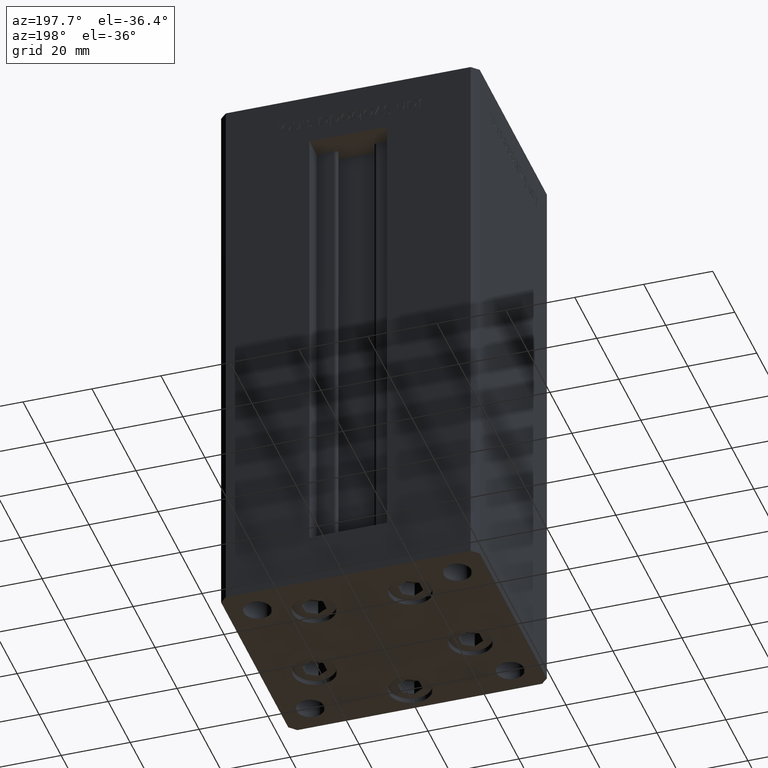
[diagram: clean part render]
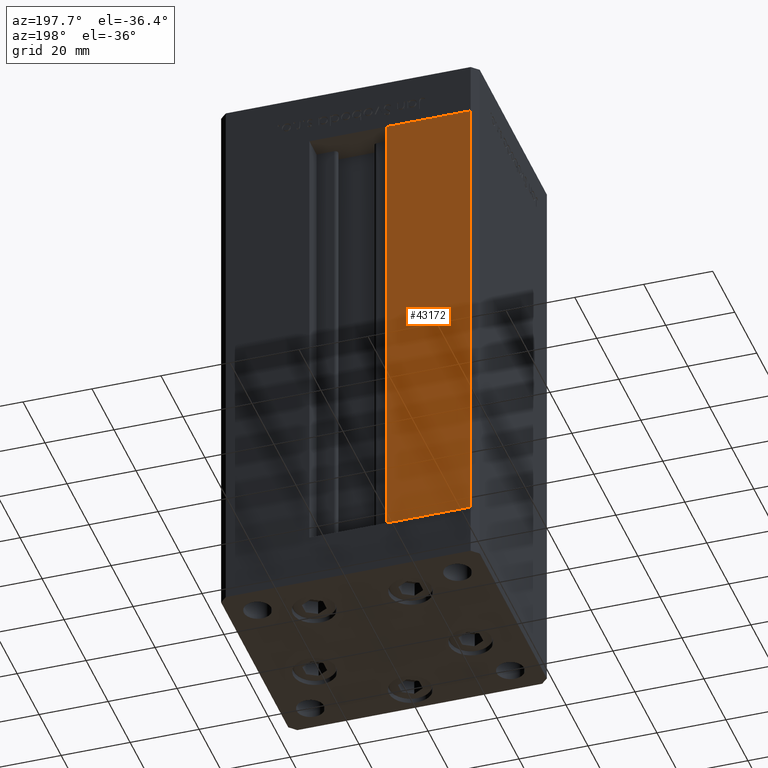
[diagram: same view with one face highlighted and labeled with its STEP entity id]
A machine part, auxiliary view. The second image highlights one B-rep face of the part: STEP entity #43172.
In plain terms, the highlighted planar face has unit normal (0, -1, 0).
Its self-contained STEP definition (entity closure, byte-faithful):
#1097 = CARTESIAN_POINT ( 'NONE',  ( -35.50000000000000000, 32.49999999999999289, 0.000000000000000000 ) ) ;
#5168 = LINE ( 'NONE', #16354, #43896 ) ;
#6299 = CARTESIAN_POINT ( 'NONE',  ( -11.25000000000000178, 32.49999999999999289, 0.000000000000000000 ) ) ;
#6670 = VERTEX_POINT ( 'NONE', #35328 ) ;
#7966 = VECTOR ( 'NONE', #26106, 1000.000000000000000 ) ;
#9147 = DIRECTION ( 'NONE',  ( 1.000000000000000000, 0.000000000000000000, 0.000000000000000000 ) ) ;
#10268 = CARTESIAN_POINT ( 'NONE',  ( -11.25000000000000178, 32.49999999999999289, 0.000000000000000000 ) ) ;
#12166 = CARTESIAN_POINT ( 'NONE',  ( -35.50000000000000000, 32.49999999999999289, 136.0000000000000000 ) ) ;
#16354 = CARTESIAN_POINT ( 'NONE',  ( -11.25000000000000178, 32.49999999999999289, 136.0000000000000000 ) ) ;
#16382 = LINE ( 'NONE', #12166, #32024 ) ;
#18222 = ORIENTED_EDGE ( 'NONE', *, *, #36258, .F. ) ;
#18832 = VECTOR ( 'NONE', #27846, 1000.000000000000000 ) ;
#19443 = VERTEX_POINT ( 'NONE', #6299 ) ;
#19468 = EDGE_CURVE ( 'NONE', #19443, #48665, #29826, .T. ) ;
#19866 = ORIENTED_EDGE ( 'NONE', *, *, #51578, .F. ) ;
#21968 = DIRECTION ( 'NONE',  ( 0.000000000000000000, -0.000000000000000000, -1.000000000000000000 ) ) ;
#22815 = CARTESIAN_POINT ( 'NONE',  ( -11.25000000000000178, 32.49999999999999289, 0.000000000000000000 ) ) ;
#25068 = ORIENTED_EDGE ( 'NONE', *, *, #45571, .T. ) ;
#26106 = DIRECTION ( 'NONE',  ( -1.000000000000000000, 0.000000000000000000, 0.000000000000000000 ) ) ;
#26721 = DIRECTION ( 'NONE',  ( 0.000000000000000000, -1.000000000000000000, 0.000000000000000000 ) ) ;
#27846 = DIRECTION ( 'NONE',  ( -0.000000000000000000, -0.000000000000000000, 1.000000000000000000 ) ) ;
#28013 = AXIS2_PLACEMENT_3D ( 'NONE', #42532, #26721, #21968 ) ;
#29826 = LINE ( 'NONE', #10268, #7966 ) ;
#32024 = VECTOR ( 'NONE', #36691, 1000.000000000000000 ) ;
#35328 = CARTESIAN_POINT ( 'NONE',  ( -11.25000000000000178, 32.49999999999999289, 136.0000000000000000 ) ) ;
#35578 = VERTEX_POINT ( 'NONE', #51650 ) ;
#36258 = EDGE_CURVE ( 'NONE', #35578, #48665, #16382, .T. ) ;
#36691 = DIRECTION ( 'NONE',  ( -0.000000000000000000, -0.000000000000000000, -1.000000000000000000 ) ) ;
#39184 = LINE ( 'NONE', #22815, #18832 ) ;
#42532 = CARTESIAN_POINT ( 'NONE',  ( -11.25000000000000178, 32.49999999999999289, 136.0000000000000000 ) ) ;
#42783 = PLANE ( 'NONE',  #28013 ) ;
#43172 = ADVANCED_FACE ( 'NONE', ( #50176 ), #42783, .F. ) ;
#43896 = VECTOR ( 'NONE', #9147, 1000.000000000000000 ) ;
#45571 = EDGE_CURVE ( 'NONE', #35578, #6670, #5168, .T. ) ;
#48665 = VERTEX_POINT ( 'NONE', #1097 ) ;
#48855 = EDGE_LOOP ( 'NONE', ( #25068, #19866, #49513, #18222 ) ) ;
#49513 = ORIENTED_EDGE ( 'NONE', *, *, #19468, .T. ) ;
#50176 = FACE_OUTER_BOUND ( 'NONE', #48855, .T. ) ;
#51578 = EDGE_CURVE ( 'NONE', #19443, #6670, #39184, .T. ) ;
#51650 = CARTESIAN_POINT ( 'NONE',  ( -35.50000000000000000, 32.49999999999999289, 136.0000000000000000 ) ) ;